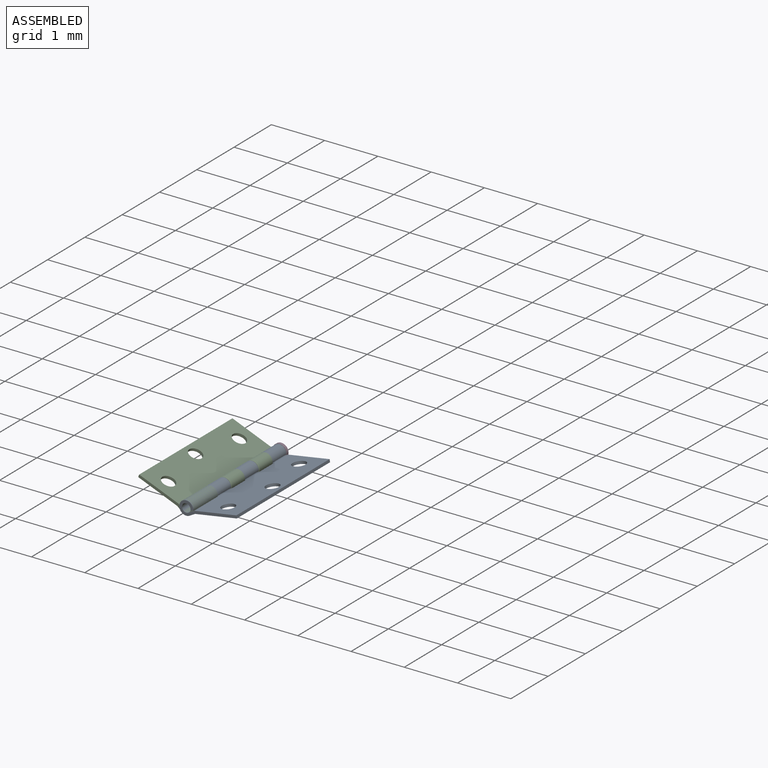
[diagram: assembled view]
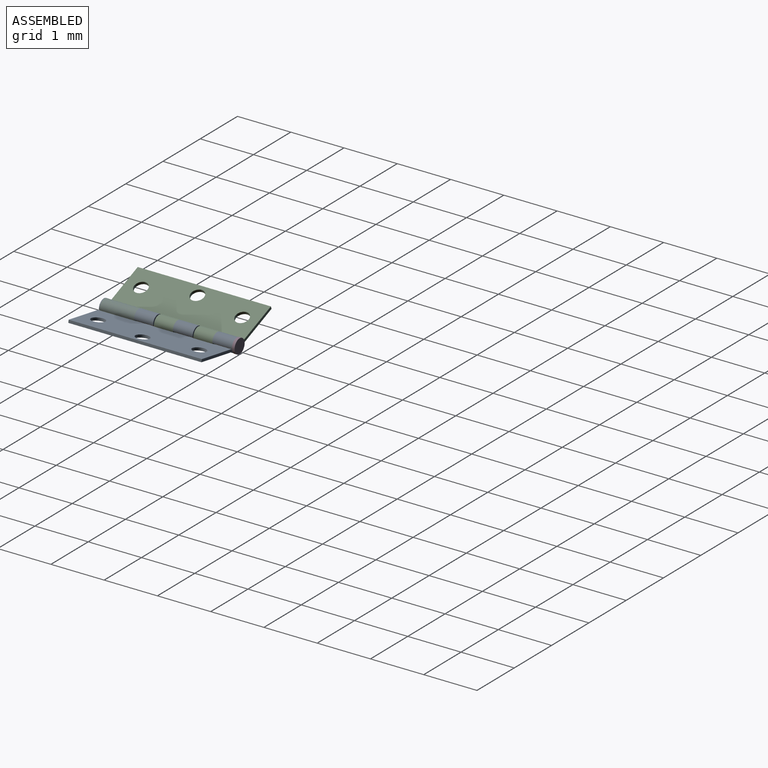
[diagram: assembled view, second angle]
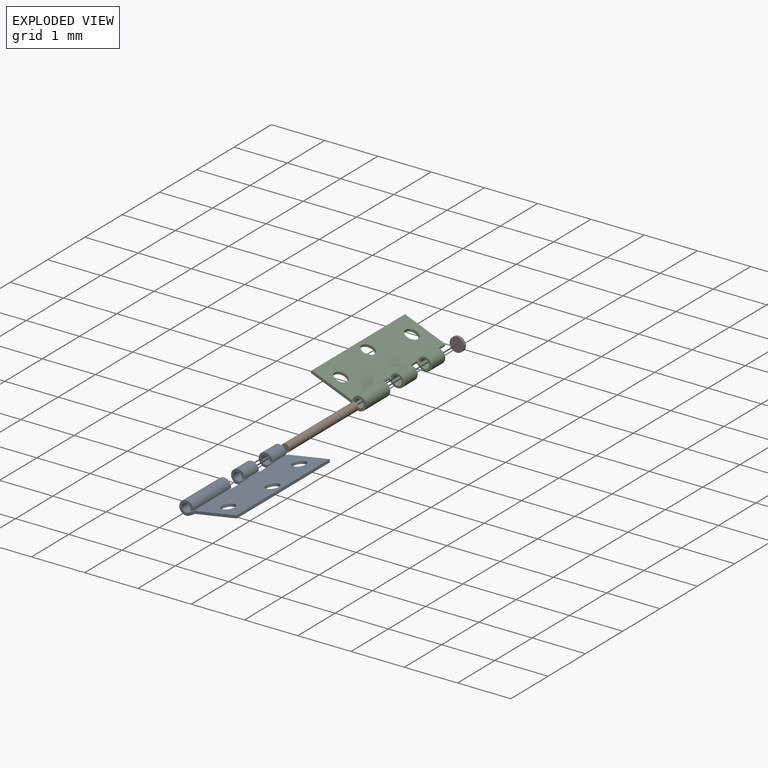
[diagram: exploded view]
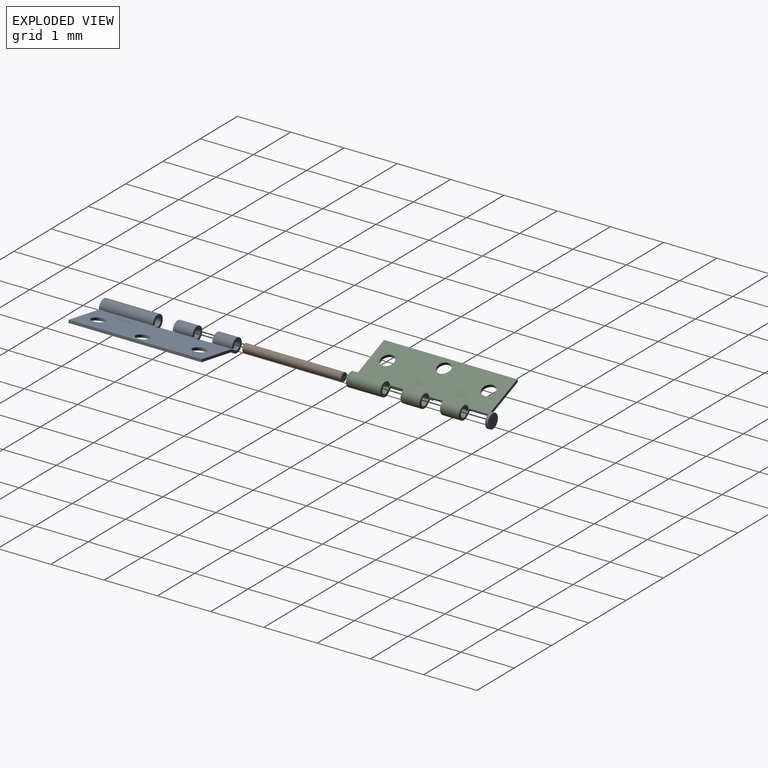
[diagram: exploded view, second angle]
ASSEMBLY  parts=4 mates=3
PART A: 33 faces, bbox 1.1x2.5x0.3 mm
  f0: plane 1.03x0.13mm, normal (-0.32,0,0.95), area 0.1mm2, adj f8,f10,f18,f27,f31
  f1: plane 0.4x0.13mm, normal (-0.32,0,0.95), area 0.1mm2, adj f9,f10,f24,f28,f29,f32
  f2: plane 1.03x0.11mm, normal (0.34,0,-0.94), area 0.1mm2, adj f4,f11,f18,f27,f31
  f3: plane 0.4x0.11mm, normal (0.34,0,-0.94), area 0mm2, adj f5,f11,f24,f28,f29,f32
  f4: cylinder r=0.13mm len=1.02mm, axis (0,1,0), area 0.7mm2, adj f2,f6,f18,f27
  f5: cylinder r=0.13mm len=0.37mm, axis (0,1,0), area 0.3mm2, adj f3,f7,f24,f28
  f6: plane 1.02x0.05mm, normal (0,0,-1), area 0.1mm2, adj f4,f8,f18,f27
  f7: plane 0.37x0.05mm, normal (0,0,-1), area 0mm2, adj f5,f9,f24,f28
  f8: cylinder r=0.08mm len=1.02mm, axis (0,1,0), area 0.4mm2, adj f0,f6,f18,f27
  f9: cylinder r=0.08mm len=0.37mm, axis (0,1,0), area 0.2mm2, adj f1,f7,f24,f28
  f10: plane 2.5x0.79mm, normal (0,0,1), area 1.8mm2, adj f0,f1,f12,f13,f18,f19,f20,f21
  f11: plane 2.5x0.79mm, normal (0,0,-1), area 1.8mm2, adj f2,f3,f13,f14,f18,f19,f20,f21
  f12: plane 0.39x0.13mm, normal (-0.32,0,0.95), area 0.1mm2, adj f10,f17,f19,f25,f30
  f13: plane 2.5x0.05mm, normal (1,0,0), area 0.1mm2, adj f10,f11,f18,f19
  f14: plane 0.39x0.11mm, normal (0.34,0,-0.94), area 0mm2, adj f11,f15,f19,f25,f30
  f15: cylinder r=0.13mm len=0.37mm, axis (0,1,0), area 0.3mm2, adj f14,f16,f19,f25
  f16: plane 0.37x0.05mm, normal (0,0,-1), area 0mm2, adj f15,f17,f19,f25
  f17: cylinder r=0.08mm len=0.37mm, axis (0,1,0), area 0.2mm2, adj f12,f16,f19,f25
  f18: plane 1.08x0.26mm, normal (0,-1,0), area 0.1mm2, adj f0,f2,f4,f6,f8,f10,f11,f13
  f19: plane 1.08x0.26mm, normal (0,1,0), area 0.1mm2, adj f10,f11,f12,f13,f14,f15,f16,f17
  f20: cylinder r=0.12mm len=0.25mm, axis (0,0,1), area 0mm2, adj f10,f11
  f21: cylinder r=0.12mm len=0.25mm, axis (0,0,1), area 0mm2, adj f10,f11
  f22: cylinder r=0.12mm len=0.25mm, axis (0,0,1), area 0mm2, adj f10,f11
  f23: plane 0.35x0.05mm, normal (-1,0,0), area 0mm2, adj f10,f11,f29,f30
  f24: plane 0.27x0.26mm, normal (0,1,0), area 0mm2, adj f1,f3,f5,f7,f9,f29
  f25: plane 0.27x0.26mm, normal (0,-1,0), area 0mm2, adj f12,f14,f15,f16,f17,f30
  f26: plane 0.35x0.05mm, normal (-1,0,0), area 0mm2, adj f10,f11,f31,f32
  f27: plane 0.27x0.26mm, normal (0,1,0), area 0mm2, adj f0,f2,f4,f6,f8,f31
  f28: plane 0.27x0.26mm, normal (0,-1,0), area 0mm2, adj f1,f3,f5,f7,f9,f32
  f29: cylinder r=0.01mm len=0.06mm, axis (0,0,1), area 0mm2, adj f1,f3,f23,f24
  f30: cylinder r=0.01mm len=0.06mm, axis (0,0,-1), area 0mm2, adj f12,f14,f23,f25
  f31: cylinder r=0.01mm len=0.06mm, axis (0,0,1), area 0mm2, adj f0,f2,f26,f27
  f32: cylinder r=0.01mm len=0.06mm, axis (0,0,-1), area 0mm2, adj f1,f3,f26,f28
PART B: 3 faces, bbox 0.2x1.9x0.2 mm
  f0: cylinder r=0.08mm len=1.85mm, axis (0,1,0), area 0.9mm2, adj f1,f2
  f1: plane 0.16x0.16mm, normal (0,-1,0), area 0mm2, adj f0
  f2: plane 0.16x0.16mm, normal (0,1,0), area 0mm2, adj f0
PART C: 61 faces, bbox 1.1x2.5x0.3 mm
  f0: plane 2.5x0.13mm, normal (0.32,0,0.95), area 0.2mm2, adj f6,f7,f8,f9,f14,f15,f20,f47
  f1: plane 2.5x0.11mm, normal (-0.34,0,-0.94), area 0.2mm2, adj f2,f3,f8,f10,f12,f15,f20,f32
  f2: cylinder r=0.13mm len=0.35mm, axis (0,1,0), area 0.2mm2, adj f1,f4,f31,f36
  f3: cylinder r=0.13mm len=0.35mm, axis (0,1,0), area 0.2mm2, adj f1,f5,f35,f42
  f4: plane 0.37x0.06mm, normal (0,0,-1), area 0mm2, adj f2,f6,f23,f25,f31,f36,f46,f51
  f5: plane 0.37x0.06mm, normal (0,0,-1), area 0mm2, adj f3,f7,f21,f24,f35,f42,f50,f57
  f6: cylinder r=0.08mm len=0.35mm, axis (0,1,0), area 0.1mm2, adj f0,f4,f46,f51
  f7: cylinder r=0.08mm len=0.35mm, axis (0,1,0), area 0.1mm2, adj f0,f5,f50,f57
  f8: plane 0.82x0.05mm, normal (0,1,0), area 0mm2, adj f0,f1,f9,f10,f11,f26,f34,f49
  f9: plane 2.5x0.79mm, normal (0,0,1), area 1.8mm2, adj f0,f8,f11,f15,f16,f17,f18
  f10: plane 2.5x0.79mm, normal (0,0,-1), area 1.8mm2, adj f1,f8,f11,f15,f16,f17,f18
  f11: plane 2.5x0.05mm, normal (-1,0,0), area 0.1mm2, adj f8,f9,f10,f15
  f12: cylinder r=0.13mm len=0.65mm, axis (0,1,0), area 0.4mm2, adj f1,f13,f15,f20
  f13: plane 0.65x0.05mm, normal (0,0,-1), area 0mm2, adj f12,f14,f15,f20
  f14: cylinder r=0.08mm len=0.65mm, axis (0,1,0), area 0.3mm2, adj f0,f13,f15,f20
  f15: plane 1.08x0.26mm, normal (0,-1,0), area 0.1mm2, adj f0,f1,f9,f10,f11,f12,f13,f14
  f16: cylinder r=0.12mm len=0.25mm, axis (0,0,1), area 0mm2, adj f9,f10
  f17: cylinder r=0.12mm len=0.25mm, axis (0,0,1), area 0mm2, adj f9,f10
  f18: cylinder r=0.12mm len=0.25mm, axis (0,0,1), area 0mm2, adj f9,f10
  f19: plane 0.36x0.02mm, normal (1,0,0), area 0mm2, adj f20,f27,f45,f60
  f20: plane 0.28x0.26mm, normal (0,1,0), area 0mm2, adj f0,f1,f12,f13,f14,f19,f45,f60
  f21: plane 0.24x0.24mm, normal (0,-1,0), area 0mm2, adj f5,f27,f42,f43,f57,f58
  f22: plane 0.35x0.02mm, normal (1,0,0), area 0mm2, adj f28,f29,f41,f56
  f23: plane 0.24x0.24mm, normal (0,-1,0), area 0mm2, adj f4,f28,f36,f38,f51,f53
  f24: plane 0.24x0.24mm, normal (0,1,0), area 0mm2, adj f5,f29,f35,f37,f50,f52
  f25: plane 0.24x0.24mm, normal (0,1,0), area 0mm2, adj f4,f30,f31,f32,f46,f47
  f26: plane 0.36x0.02mm, normal (1,0,0), area 0mm2, adj f8,f30,f34,f49
  f27: cylinder r=0.01mm len=0.03mm, axis (0,0,-1), area 0mm2, adj f19,f21,f44,f59
  f28: cylinder r=0.01mm len=0.03mm, axis (0,0,-1), area 0mm2, adj f22,f23,f40,f55
  f29: cylinder r=0.01mm len=0.03mm, axis (0,0,1), area 0mm2, adj f22,f24,f39,f54
  f30: cylinder r=0.01mm len=0.03mm, axis (0,0,1), area 0mm2, adj f25,f26,f33,f48
  f31: torus R=0.12mm, axis (0,-1,0), area 0mm2, adj f2,f4,f25,f32
  f32: cylinder r=0.01mm len=0.08mm, axis (0.94,0,-0.34), area 0mm2, adj f1,f25,f31,f33
  f33: bspline ~0.03x0.03mm, area 0mm2, adj f1,f30,f32,f34
  f34: cylinder r=0.01mm len=0.36mm, axis (0,-1,0), area 0mm2, adj f1,f8,f26,f33
  f35: torus R=0.12mm, axis (0,-1,0), area 0mm2, adj f3,f5,f24,f37
  f36: torus R=0.12mm, axis (0,-1,0), area 0mm2, adj f2,f4,f23,f38
  f37: cylinder r=0.01mm len=0.08mm, axis (0.94,0,-0.34), area 0mm2, adj f1,f24,f35,f39
  f38: cylinder r=0.01mm len=0.08mm, axis (-0.94,0,0.34), area 0mm2, adj f1,f23,f36,f40
  f39: bspline ~0.03x0.03mm, area 0mm2, adj f1,f29,f37,f41
  f40: bspline ~0.03x0.03mm, area 0mm2, adj f1,f28,f38,f41
  f41: cylinder r=0.01mm len=0.35mm, axis (0,-1,0), area 0mm2, adj f1,f22,f39,f40
  f42: torus R=0.12mm, axis (0,-1,0), area 0mm2, adj f3,f5,f21,f43
  f43: cylinder r=0.01mm len=0.08mm, axis (-0.94,0,0.34), area 0mm2, adj f1,f21,f42,f44
  f44: bspline ~0.03x0.03mm, area 0mm2, adj f1,f27,f43,f45
  f45: cylinder r=0.01mm len=0.36mm, axis (0,-1,0), area 0mm2, adj f1,f19,f20,f44
  f46: torus R=0.09mm, axis (0,-1,0), area 0mm2, adj f4,f6,f25,f47
  f47: cylinder r=0.01mm len=0.09mm, axis (-0.95,0,0.32), area 0mm2, adj f0,f25,f46,f48
  f48: bspline ~0.03x0.03mm, area 0mm2, adj f0,f30,f47,f49
  f49: cylinder r=0.01mm len=0.36mm, axis (0,1,0), area 0mm2, adj f0,f8,f26,f48
  f50: torus R=0.09mm, axis (0,-1,0), area 0mm2, adj f5,f7,f24,f52
  f51: torus R=0.09mm, axis (0,-1,0), area 0mm2, adj f4,f6,f23,f53
  f52: cylinder r=0.01mm len=0.09mm, axis (-0.95,0,0.32), area 0mm2, adj f0,f24,f50,f54
  f53: cylinder r=0.01mm len=0.09mm, axis (0.95,0,-0.32), area 0mm2, adj f0,f23,f51,f55
  f54: bspline ~0.03x0.03mm, area 0mm2, adj f0,f29,f52,f56
  f55: bspline ~0.03x0.03mm, area 0mm2, adj f0,f28,f53,f56
  f56: cylinder r=0.01mm len=0.35mm, axis (0,1,0), area 0mm2, adj f0,f22,f54,f55
  f57: torus R=0.09mm, axis (0,-1,0), area 0mm2, adj f5,f7,f21,f58
  f58: cylinder r=0.01mm len=0.09mm, axis (0.95,0,-0.32), area 0mm2, adj f0,f21,f57,f59
  f59: bspline ~0.03x0.03mm, area 0mm2, adj f0,f27,f58,f60
  f60: cylinder r=0.01mm len=0.36mm, axis (0,1,0), area 0mm2, adj f0,f19,f20,f59
PART D: 3 faces, bbox 0.3x0.1x0.3 mm
  f0: cylinder r=0.13mm len=0.27mm, axis (0,-1,0), area 0mm2, adj f1,f2
  f1: plane 0.27x0.27mm, normal (0,1,0), area 0.1mm2, adj f0
  f2: plane 0.27x0.27mm, normal (0,-1,0), area 0.1mm2, adj f0
PLACE A rot(axis=(0,-1,0),9.6deg) t=(0.01,0,-0.03)mm
PLACE B at identity fixed
PLACE C rot(axis=(0,1,0),21.9deg) t=(0,0.01,0.06)mm
PLACE D at identity
MATE revolute C.f2 <-> A.f4  axis (0,1,0) through (0.16,-1.11,0.03)mm
MATE revolute B.f0 <-> A.f4  axis (0,1,0) through (0.16,0,0.03)mm
MATE fastened B.f0 <-> D.f0  axis (0,1,0) through (0.16,0,0.03)mm
